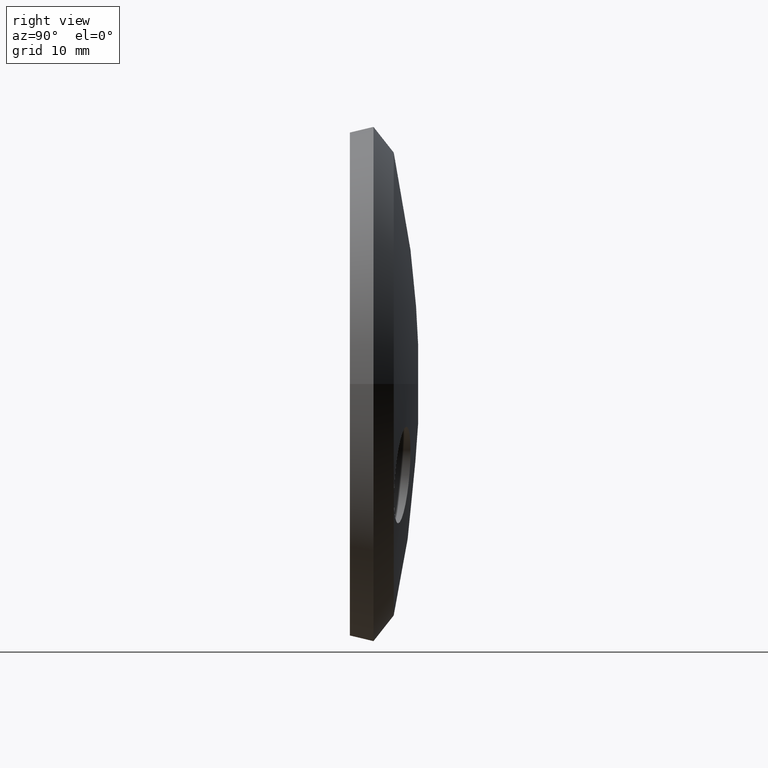
[diagram: clean part render]
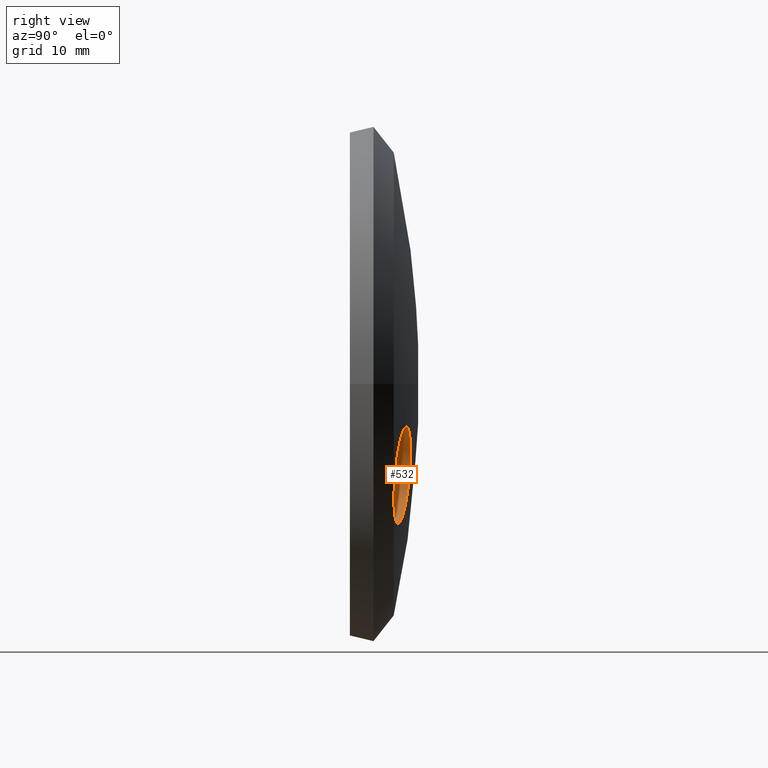
[diagram: same view with one face highlighted and labeled with its STEP entity id]
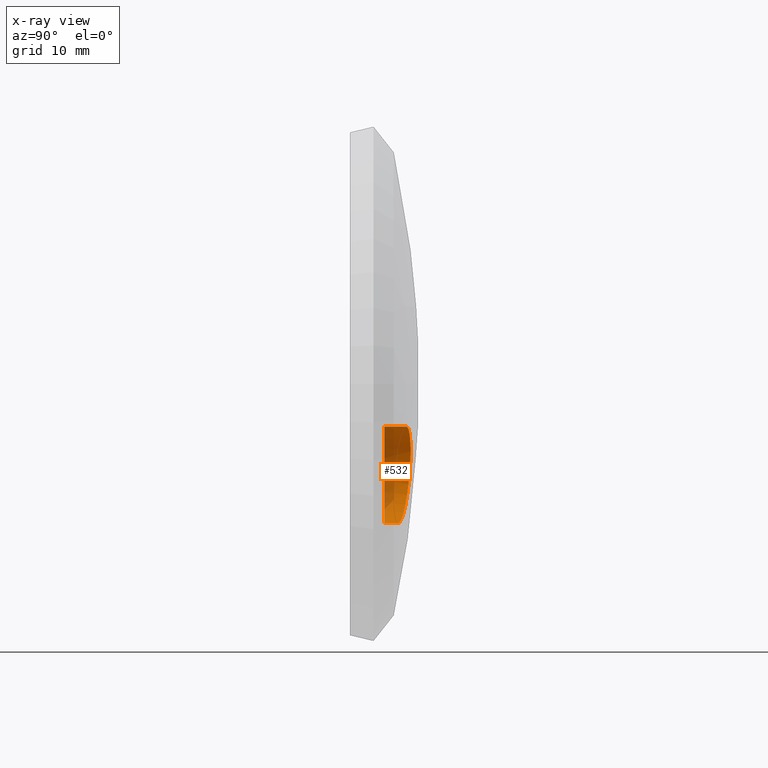
[diagram: x-ray of the same camera — body ghosted, the highlighted face saturated]
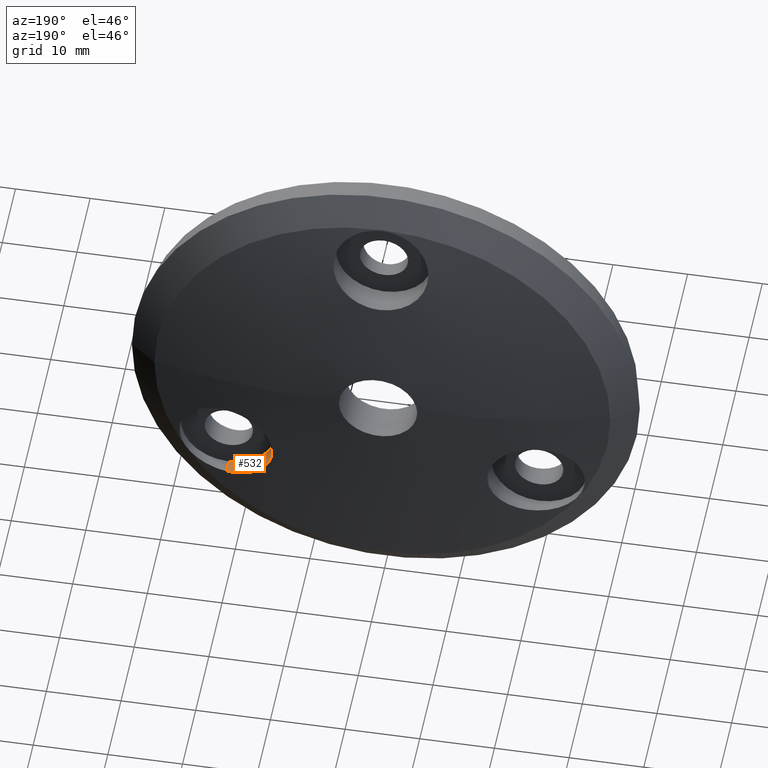
[diagram: same view with one face highlighted and labeled with its STEP entity id]
A machine part, right view. The second image highlights one B-rep face of the part: STEP entity #532.
The next image is the same camera in x-ray: the body ghosted, the highlighted face saturated — about 38% of this face is hidden behind the body in this view.
A second angle (auxiliary view) of the same face is appended — the face is thin or edge-on in the first view.
In plain terms, the highlighted cylindrical surface (partial cylindrical patch) has radius 6.375 mm, axis along (-0, 1, -0).
Its self-contained STEP definition (entity closure, byte-faithful):
#503 = CARTESIAN_POINT ( 'NONE',  ( 17.61183211817966665, 2.807622817210111421, -17.54512398778976134 ) ) ;
#532 = ADVANCED_FACE ( 'NONE', ( #6895 ), #7677, .F. ) ;
#590 = CARTESIAN_POINT ( 'NONE',  ( 16.57308718426975247, 3.845303378906187231, -7.209573069430391890 ) ) ;
#724 = CARTESIAN_POINT ( 'NONE',  ( 20.36517422948053024, 3.420079894261370157, -5.625000000000109246 ) ) ;
#733 = AXIS2_PLACEMENT_3D ( 'NONE', #4969, #12110, #9969 ) ;
#903 = EDGE_CURVE ( 'NONE', #11155, #11668, #4081, .T. ) ;
#995 = CARTESIAN_POINT ( 'NONE',  ( 20.78460969082647480, 1.680535161540270384, -5.625000000000100364 ) ) ;
#1003 = DIRECTION ( 'NONE',  ( 0.000000000000000000, 4.796000198288820078E-15, 1.000000000000000000 ) ) ;
#1158 = CARTESIAN_POINT ( 'NONE',  ( 20.78460969082647480, 0.4405351615402708920, -5.625000000000095035 ) ) ;
#1477 = CARTESIAN_POINT ( 'NONE',  ( 16.91575705473004732, 2.950612882491112199, -17.08398434749967265 ) ) ;
#1560 = CARTESIAN_POINT ( 'NONE',  ( 14.40733601108577666, 3.789249325664165280, -11.61859296469764757 ) ) ;
#1767 = EDGE_CURVE ( 'NONE', #6849, #8822, #9153, .T. ) ;
#1822 = CARTESIAN_POINT ( 'NONE',  ( 17.95908295054708503, 3.720767838000077710, -6.270070992850613756 ) ) ;
#1975 = DIRECTION ( 'NONE',  ( -0.000000000000000000, 1.000000000000000000, -4.792891466384507883E-15 ) ) ;
#2481 = CARTESIAN_POINT ( 'NONE',  ( 19.34598731285291606, 2.492028243628742423, -18.21404124705721728 ) ) ;
#2525 = CARTESIAN_POINT ( 'NONE',  ( 15.97492820600188423, 3.883696069050257993, -7.794941590677808563 ) ) ;
#2614 = CARTESIAN_POINT ( 'NONE',  ( 17.06912571983405158, 3.805677639689690306, -6.815439049139475181 ) ) ;
#3162 = CARTESIAN_POINT ( 'NONE',  ( 20.78460969082647480, 1.680535161540239963, -12.00000000000009948 ) ) ;
#3224 = CARTESIAN_POINT ( 'NONE',  ( 20.78460969082647480, 3.357968690772990428, -5.625000000000107470 ) ) ;
#3480 = CARTESIAN_POINT ( 'NONE',  ( 15.38770834988912384, 3.321476215456145020, -15.39952810034788833 ) ) ;
#3602 = CARTESIAN_POINT ( 'NONE',  ( 20.37004812343725035, 2.325504498887122740, -18.37500000000010303 ) ) ;
#3652 = CARTESIAN_POINT ( 'NONE',  ( 16.59326393445094894, 3.020985498366971278, -16.82161508492283986 ) ) ;
#4081 = CIRCLE ( 'NONE', #733, 6.374999999999999112 ) ;
#4244 = ORIENTED_EDGE ( 'NONE', *, *, #12218, .T. ) ;
#4455 = CARTESIAN_POINT ( 'NONE',  ( 14.41208981108457543, 3.717327513096972069, -12.45396177723025311 ) ) ;
#4486 = CARTESIAN_POINT ( 'NONE',  ( 18.74507702832912059, 2.596197031768998631, -18.04350566401481615 ) ) ;
#4531 = CARTESIAN_POINT ( 'NONE',  ( 20.78460969082647836, 2.263632636090658679, -18.37500000000010658 ) ) ;
#4592 = CARTESIAN_POINT ( 'NONE',  ( 14.61601412047957815, 3.864222189852570821, -10.37725221198584613 ) ) ;
#4735 = LINE ( 'NONE', #10137, #5185 ) ;
#4969 = CARTESIAN_POINT ( 'NONE',  ( 20.78460969082647480, 0.4405351615402403054, -12.00000000000009415 ) ) ;
#5185 = VECTOR ( 'NONE', #5227, 1000.000000000000000 ) ;
#5218 = AXIS2_PLACEMENT_3D ( 'NONE', #3162, #9999, #1003 ) ;
#5227 = DIRECTION ( 'NONE',  ( -0.000000000000000000, 1.000000000000000000, -4.792891466384507883E-15 ) ) ;
#5293 = EDGE_CURVE ( 'NONE', #11668, #8822, #7951, .T. ) ;
#5455 = CARTESIAN_POINT ( 'NONE',  ( 14.56532301729996348, 3.854096804072457694, -10.58390906583224655 ) ) ;
#6470 = CARTESIAN_POINT ( 'NONE',  ( 15.04399159962021848, 3.901672395596824217, -9.196299812950954333 ) ) ;
#6507 = CARTESIAN_POINT ( 'NONE',  ( 19.95855879170614955, 2.390328095463909897, -18.33494568076121212 ) ) ;
#6550 = CARTESIAN_POINT ( 'NONE',  ( 14.45653952177007895, 3.674666642843639419, -12.87719603072135577 ) ) ;
#6628 = ORIENTED_EDGE ( 'NONE', *, *, #5293, .F. ) ;
#6800 = EDGE_LOOP ( 'NONE', ( #8462, #4244, #10364, #6628 ) ) ;
#6849 = VERTEX_POINT ( 'NONE', #4531 ) ;
#6895 = FACE_OUTER_BOUND ( 'NONE', #6800, .T. ) ;
#7460 = CARTESIAN_POINT ( 'NONE',  ( 15.70954108477502764, 3.895260258945961507, -8.118819684001197245 ) ) ;
#7497 = CARTESIAN_POINT ( 'NONE',  ( 15.08156402748963210, 3.413236218403847388, -14.85643944373159187 ) ) ;
#7629 = CARTESIAN_POINT ( 'NONE',  ( 20.78460969082647480, 3.357968690772990428, -5.625000000000107470 ) ) ;
#7673 = CARTESIAN_POINT ( 'NONE',  ( 19.13915136749581336, 3.583290228443325898, -5.837454163507556082 ) ) ;
#7677 = CYLINDRICAL_SURFACE ( 'NONE', #5218, 6.374999999999999112 ) ;
#7794 = CARTESIAN_POINT ( 'NONE',  ( 19.95196714530147730, 3.477723030045240638, -5.665993821110320461 ) ) ;
#7951 = LINE ( 'NONE', #995, #12490 ) ;
#8393 = CARTESIAN_POINT ( 'NONE',  ( 15.99955867958755285, 3.159487785599293108, -16.23304123491420725 ) ) ;
#8439 = CARTESIAN_POINT ( 'NONE',  ( 14.99026725424890749, 3.442985917237051829, -14.66642423996210098 ) ) ;
#8462 = ORIENTED_EDGE ( 'NONE', *, *, #903, .F. ) ;
#8482 = CARTESIAN_POINT ( 'NONE',  ( 14.80623536127835571, 3.887318777758187682, -9.776631648200039493 ) ) ;
#8518 = CARTESIAN_POINT ( 'NONE',  ( 16.89893709706086966, 3.820040234566058679, -6.941674141139264620 ) ) ;
#8565 = CARTESIAN_POINT ( 'NONE',  ( 20.78460969082647836, 2.263632636090658679, -18.37500000000010658 ) ) ;
#8691 = CARTESIAN_POINT ( 'NONE',  ( 19.34121482490176192, 3.557713563517101996, -5.787085065629103298 ) ) ;
#8733 = CARTESIAN_POINT ( 'NONE',  ( 17.59160289534123933, 3.758295457911089432, -6.466393023393679051 ) ) ;
#8822 = VERTEX_POINT ( 'NONE', #3224 ) ;
#9153 = B_SPLINE_CURVE_WITH_KNOTS ( 'NONE', 3,
 ( #8565, #3602, #6507, #2481, #10552, #4486, #11471, #9572, #503, #1477, #3652, #8393, #9393, #3480, #11509, #7497, #8439, #12507, #10412, #6550, #4455, #1560, #11426, #5455, #4592, #12410, #8482, #6470, #9476, #7460, #2525, #9433, #590, #8518, #2614, #8733, #1822, #11719, #10677, #7673, #8691, #7794, #724, #7629 ),
 .UNSPECIFIED., .F., .F.,
 ( 4, 2, 2, 2, 2, 2, 2, 2, 2, 2, 2, 2, 2, 2, 2, 2, 2, 2, 2, 2, 2, 4 ),
 ( 0.03507049026872920833, 0.03632490526139388332, 0.03695211275772622428, 0.03757932025405856524, 0.03883373524672324717, 0.04008815023938792910, 0.04134256523205261102, 0.04196977272838495199, 0.04259698022471729295, 0.04385139521738197488, 0.04510581021004664987, 0.04636022520271133179, 0.04698743269904367970, 0.04761464019537602066, 0.04886905518804070953, 0.05012347018070539839, 0.05075067767703775323, 0.05137788517337009420, 0.05263230016603479000, 0.05325950766236713790, 0.05388671515869948581, 0.05514113015136418855 ),
 .UNSPECIFIED. ) ;
#9393 = CARTESIAN_POINT ( 'NONE',  ( 15.73497664387419803, 3.226093641359059294, -15.91314102053459401 ) ) ;
#9433 = CARTESIAN_POINT ( 'NONE',  ( 16.41789493837800151, 3.856182035983874545, -7.350681870040835619 ) ) ;
#9476 = CARTESIAN_POINT ( 'NONE',  ( 15.24085110743520666, 3.904335553276040649, -8.824055609664837263 ) ) ;
#9572 = CARTESIAN_POINT ( 'NONE',  ( 17.97856226129154322, 2.736438737871769167, -17.73904979882997424 ) ) ;
#9969 = DIRECTION ( 'NONE',  ( 0.000000000000000000, 4.796000198288820078E-15, 1.000000000000000000 ) ) ;
#9982 = CARTESIAN_POINT ( 'NONE',  ( 20.78460969082647480, 0.4405351615402097187, -18.37500000000009237 ) ) ;
#9999 = DIRECTION ( 'NONE',  ( -0.000000000000000000, 1.000000000000000000, -4.792891466384507883E-15 ) ) ;
#10137 = CARTESIAN_POINT ( 'NONE',  ( 20.78460969082647480, 1.680535161540209321, -18.37500000000009948 ) ) ;
#10364 = ORIENTED_EDGE ( 'NONE', *, *, #1767, .T. ) ;
#10412 = CARTESIAN_POINT ( 'NONE',  ( 14.62436833498958855, 3.580269768278186326, -13.69274078897265845 ) ) ;
#10552 = CARTESIAN_POINT ( 'NONE',  ( 19.14227202452335774, 2.526742430284456553, -18.16330927199136980 ) ) ;
#10677 = CARTESIAN_POINT ( 'NONE',  ( 18.73815176468031396, 3.632212738573395772, -5.958765503872400338 ) ) ;
#11155 = VERTEX_POINT ( 'NONE', #9982 ) ;
#11426 = CARTESIAN_POINT ( 'NONE',  ( 14.44562633077378599, 3.818990169130318080, -11.20327168600430490 ) ) ;
#11471 = CARTESIAN_POINT ( 'NONE',  ( 18.55049384131176282, 2.631116504678583823, -17.97426512748728200 ) ) ;
#11509 = CARTESIAN_POINT ( 'NONE',  ( 15.28010334544888593, 3.352551723146614648, -15.22248134633992933 ) ) ;
#11668 = VERTEX_POINT ( 'NONE', #1158 ) ;
#11719 = CARTESIAN_POINT ( 'NONE',  ( 18.53894340126731777, 3.655577187088994595, -6.029960334077497208 ) ) ;
#12110 = DIRECTION ( 'NONE',  ( -0.000000000000000000, 1.000000000000000000, -4.792891466384507883E-15 ) ) ;
#12218 = EDGE_CURVE ( 'NONE', #11155, #6849, #4735, .T. ) ;
#12410 = CARTESIAN_POINT ( 'NONE',  ( 14.73641812573183607, 3.880799204783390355, -9.974102548023196846 ) ) ;
#12490 = VECTOR ( 'NONE', #1975, 1000.000000000000000 ) ;
#12507 = CARTESIAN_POINT ( 'NONE',  ( 14.74717590137142942, 3.528271955008503991, -14.08911661643604774 ) ) ;